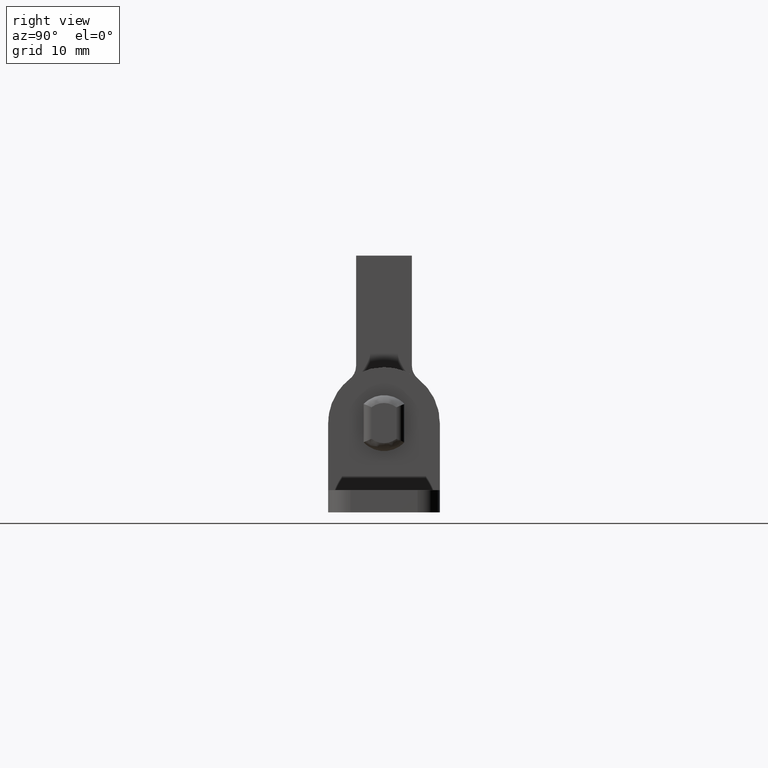
[diagram: clean part render]
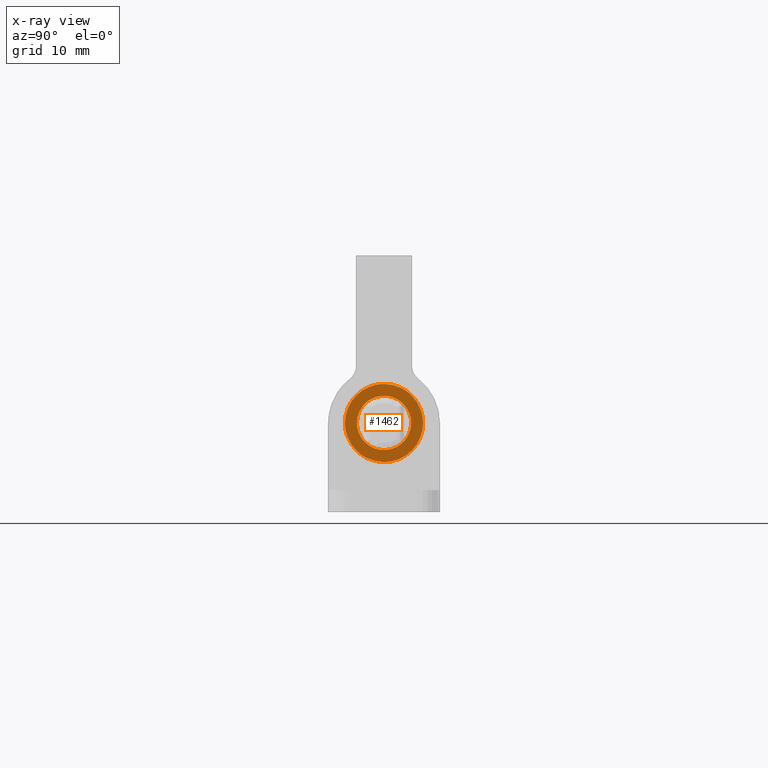
[diagram: x-ray — body ghosted, one internal face saturated and labeled with its STEP entity id]
A machine part, right view, then the same camera in x-ray: the body is ghosted and one INTERNAL B-rep face — a face not visible from any outside direction — is saturated and labeled: STEP entity #1462.
In plain terms, the highlighted face is a freeform B-spline surface patch.
Its self-contained STEP definition (entity closure, byte-faithful):
#37=CARTESIAN_POINT('',(-31.500000000000000,2.409240950135829,2.538810157072121));
#38=VERTEX_POINT('',#37);
#44=CARTESIAN_POINT('',(-31.500000000000000,3.499999999999950,-0.000000589685865));
#45=VERTEX_POINT('',#44);
#46=CARTESIAN_POINT('',(-31.500000000000000,2.409240950135829,2.538810157072121));
#47=CARTESIAN_POINT('',(-31.500000000000139,2.623933604187657,2.335185640966392));
#48=CARTESIAN_POINT('',(-31.499999999999851,2.897375926766368,2.000120248993642));
#49=CARTESIAN_POINT('',(-31.500000000000060,3.231847863744809,1.389202240311981));
#50=CARTESIAN_POINT('',(-31.500000000000050,3.443969495933714,0.769302562887201));
#51=CARTESIAN_POINT('',(-31.499999999999801,3.500037622120586,0.251505204719491));
#52=CARTESIAN_POINT('',(-31.500000000000000,3.499999999999950,-0.000000589685865));
#53=B_SPLINE_CURVE_WITH_KNOTS('',3,(#46,#47,#48,#49,#50,#51,#52),.UNSPECIFIED.,.F.,.U.,(4,1,1,1,4),(0.000000016702382,0.887669780125678,1.287128809538576,2.086023199816372,2.840542868185275),.UNSPECIFIED.);
#54=EDGE_CURVE('',#38,#45,#53,.T.);
#56=CARTESIAN_POINT('',(-31.500000000000000,0.0,-3.500000000000000));
#57=VERTEX_POINT('',#56);
#58=CARTESIAN_POINT('',(-31.500000000000000,3.499999999999950,-0.000000589685865));
#59=CARTESIAN_POINT('',(-31.500000000000050,3.500005143859668,-0.171801259262824));
#60=CARTESIAN_POINT('',(-31.500000000000000,3.470441096384983,-0.572680562555199));
#61=CARTESIAN_POINT('',(-31.499999999999979,3.316661737101244,-1.186718283153935));
#62=CARTESIAN_POINT('',(-31.499999999999979,3.002965183564402,-1.850000236501209));
#63=CARTESIAN_POINT('',(-31.499999999999989,2.589439601120672,-2.386631525019033));
#64=CARTESIAN_POINT('',(-31.500000000000359,2.073193370396063,-2.843085341939303));
#65=CARTESIAN_POINT('',(-31.499999999998970,1.581146930036365,-3.142125664006574));
#66=CARTESIAN_POINT('',(-31.500000000001481,0.873249090323637,-3.420201974097066));
#67=CARTESIAN_POINT('',(-31.499999999998671,0.357960410474342,-3.500204626563484));
#68=CARTESIAN_POINT('',(-31.500000000000000,0.0,-3.500000000000000));
#69=B_SPLINE_CURVE_WITH_KNOTS('',3,(#58,#59,#60,#61,#62,#63,#64,#65,#66,#67,#68),.UNSPECIFIED.,.F.,.U.,(4,1,1,1,1,1,1,1,4),(0.000000061539621,0.515404665074777,1.202648375425238,1.889885754813425,2.705976917351017,3.221378419680692,3.951557428571207,4.424028806546783,5.497821307706870),.UNSPECIFIED.);
#70=EDGE_CURVE('',#45,#57,#69,.T.);
#72=CARTESIAN_POINT('',(-31.500000000000000,-2.409240950135825,-2.538810157072116));
#73=VERTEX_POINT('',#72);
#74=CARTESIAN_POINT('',(-31.500000000000000,0.0,-3.500000000000000));
#75=CARTESIAN_POINT('',(-31.500000000000028,-0.235280568701778,-3.500027703123911));
#76=CARTESIAN_POINT('',(-31.499999999999950,-0.691982468023888,-3.453777104531438));
#77=CARTESIAN_POINT('',(-31.499999999999979,-1.343467856917371,-3.254716968093846));
#78=CARTESIAN_POINT('',(-31.500000000000160,-1.921094193718526,-2.949274682154409));
#79=CARTESIAN_POINT('',(-31.499999999999769,-2.258666162015066,-2.681725575710843));
#80=CARTESIAN_POINT('',(-31.500000000000000,-2.409240950135825,-2.538810157072116));
#81=B_SPLINE_CURVE_WITH_KNOTS('',3,(#74,#75,#76,#77,#78,#79,#80),.UNSPECIFIED.,.F.,.U.,(4,1,1,1,4),(0.000000015991102,0.705840394464662,1.370149730000086,2.034480066909638,2.657279360881123),.UNSPECIFIED.);
#82=EDGE_CURVE('',#57,#73,#81,.T.);
#176=CARTESIAN_POINT('',(-31.500000000000000,-3.499999999999950,0.000000589685895));
#177=VERTEX_POINT('',#176);
#178=CARTESIAN_POINT('',(-31.500000000000000,-2.409240950135825,-2.538810157072116));
#179=CARTESIAN_POINT('',(-31.499999999999979,-2.602449854333944,-2.355538903036276));
#180=CARTESIAN_POINT('',(-31.500000000000021,-2.898851023043511,-2.001654368097816));
#181=CARTESIAN_POINT('',(-31.499999999999979,-3.255333139698867,-1.350610403183977));
#182=CARTESIAN_POINT('',(-31.500000000000099,-3.456586897320094,-0.695343441613379));
#183=CARTESIAN_POINT('',(-31.499999999999989,-3.500009613183478,-0.207118314268895));
#184=CARTESIAN_POINT('',(-31.500000000000000,-3.499999999999950,0.000000589685895));
#185=B_SPLINE_CURVE_WITH_KNOTS('',3,(#178,#179,#180,#181,#182,#183,#184),.UNSPECIFIED.,.F.,.U.,(4,1,1,1,4),(0.000000016702478,0.798904300737343,1.375896833801834,2.219175726478788,2.840542868185302),.UNSPECIFIED.);
#186=EDGE_CURVE('',#73,#177,#185,.T.);
#188=CARTESIAN_POINT('',(-31.500000000000000,0.0,3.500000000000000));
#189=VERTEX_POINT('',#188);
#190=CARTESIAN_POINT('',(-31.500000000000000,-3.499999999999950,0.000000589685895));
#191=CARTESIAN_POINT('',(-31.499999999999989,-3.500228330249439,0.372279906828918));
#192=CARTESIAN_POINT('',(-31.500000000000011,-3.414666064510771,0.901874621613662));
#193=CARTESIAN_POINT('',(-31.499999999999989,-3.149503555099130,1.553110669801262));
#194=CARTESIAN_POINT('',(-31.499999999999950,-2.845955940730506,2.074095868803071));
#195=CARTESIAN_POINT('',(-31.500000000000000,-2.447696806486612,2.530047149080243));
#196=CARTESIAN_POINT('',(-31.500000000000021,-1.896042762364138,2.966063380792016));
#197=CARTESIAN_POINT('',(-31.500000000000071,-1.322116082076260,3.268325847951649));
#198=CARTESIAN_POINT('',(-31.499999999999989,-0.644262302215942,3.460343367596265));
#199=CARTESIAN_POINT('',(-31.500000000000199,-0.214756637590486,3.500022009828396));
#200=CARTESIAN_POINT('',(-31.500000000000000,0.0,3.500000000000000));
#201=B_SPLINE_CURVE_WITH_KNOTS('',3,(#190,#191,#192,#193,#194,#195,#196,#197,#198,#199,#200),.UNSPECIFIED.,.F.,.U.,(4,1,1,1,1,1,1,1,4),(0.000000061541042,1.116740479682100,1.589218187281673,2.104637390701033,2.920712347977146,3.393181288406992,4.209271102710668,4.853550703403378,5.497821307706844),.UNSPECIFIED.);
#202=EDGE_CURVE('',#177,#189,#201,.T.);
#204=CARTESIAN_POINT('',(-31.500000000000000,0.0,3.500000000000000));
#205=CARTESIAN_POINT('',(-31.499999999999989,0.359851014319225,3.500163605039672));
#206=CARTESIAN_POINT('',(-31.500000000000071,1.010242341206048,3.398800642862796));
#207=CARTESIAN_POINT('',(-31.499999999999918,1.820480302602904,3.024210719543779));
#208=CARTESIAN_POINT('',(-31.500000000000121,2.238588535343907,2.700775235164257));
#209=CARTESIAN_POINT('',(-31.500000000000000,2.409240950135829,2.538810157072121));
#210=B_SPLINE_CURVE_WITH_KNOTS('',3,(#204,#205,#206,#207,#208,#209),.UNSPECIFIED.,.F.,.U.,(4,1,1,4),(0.000000015990717,1.079523307776310,1.951438982416176,2.657279360881125),.UNSPECIFIED.);
#211=EDGE_CURVE('',#189,#38,#210,.T.);
#359=CARTESIAN_POINT('',(-31.500000000000000,-2.429847076946210,0.006137585480502));
#360=VERTEX_POINT('',#359);
#369=CARTESIAN_POINT('',(-31.500000000000000,-1.220238843417092,2.101240503206545));
#370=VERTEX_POINT('',#369);
#378=CARTESIAN_POINT('',(-31.500000000000000,-2.429847076946210,0.006137585480502));
#379=CARTESIAN_POINT('',(-31.500000000000039,-2.429440885856192,0.177593474119328));
#380=CARTESIAN_POINT('',(-31.499999999999950,-2.396404685008554,0.480845165096867));
#381=CARTESIAN_POINT('',(-31.500000000000149,-2.276875708987284,0.873256050238015));
#382=CARTESIAN_POINT('',(-31.499999999999758,-2.078996734014296,1.291407223846236));
#383=CARTESIAN_POINT('',(-31.500000000000270,-1.750439425399211,1.727388974166445));
#384=CARTESIAN_POINT('',(-31.499999999999890,-1.402754255222924,1.995318162344160));
#385=CARTESIAN_POINT('',(-31.500000000000000,-1.220238843417092,2.101240503206545));
#386=B_SPLINE_CURVE_WITH_KNOTS('',3,(#378,#379,#380,#381,#382,#383,#384,#385),.UNSPECIFIED.,.F.,.U.,(4,1,1,1,1,4),(0.000000034016249,0.514369918930109,0.910043600772598,1.226589141071333,1.899218120400070,2.532290815861330),.UNSPECIFIED.);
#387=EDGE_CURVE('',#360,#370,#386,.T.);
#531=CARTESIAN_POINT('',(-31.500000000000000,-1.220238843417076,-2.101240503206555));
#532=VERTEX_POINT('',#531);
#541=CARTESIAN_POINT('',(-31.500000000000000,-2.429847076946215,-0.006137585480422));
#542=VERTEX_POINT('',#541);
#550=CARTESIAN_POINT('',(-31.500000000000000,-1.220238843417076,-2.101240503206555));
#551=CARTESIAN_POINT('',(-31.499999999999940,-1.459857591371081,-1.962303226018174));
#552=CARTESIAN_POINT('',(-31.500000000000089,-1.839300563157373,-1.644183577323825));
#553=CARTESIAN_POINT('',(-31.499999999999961,-2.163466969451102,-1.141036406344495));
#554=CARTESIAN_POINT('',(-31.500000000000139,-2.372733156556948,-0.612619083532918));
#555=CARTESIAN_POINT('',(-31.499999999999950,-2.429337699573857,-0.256744894770185));
#556=CARTESIAN_POINT('',(-31.500000000000000,-2.429847076946215,-0.006137585480422));
#557=B_SPLINE_CURVE_WITH_KNOTS('',3,(#550,#551,#552,#553,#554,#555,#556),.UNSPECIFIED.,.F.,.U.,(4,1,1,1,4),(0.000000034016299,0.830913220748236,1.463977506022430,1.780515309852722,2.532290815861430),.UNSPECIFIED.);
#558=EDGE_CURVE('',#532,#542,#557,.T.);
#704=CARTESIAN_POINT('',(-31.500000000000000,1.209608233529210,-2.107378088686965));
#705=VERTEX_POINT('',#704);
#714=CARTESIAN_POINT('',(-31.500000000000000,-1.209608233529132,-2.107378088687010));
#715=VERTEX_POINT('',#714);
#723=CARTESIAN_POINT('',(-31.500000000000000,1.209608233529210,-2.107378088686965));
#724=CARTESIAN_POINT('',(-31.500000000000000,1.083792076834413,-2.179609090662489));
#725=CARTESIAN_POINT('',(-31.500000000000028,0.807140590192351,-2.306966935432281));
#726=CARTESIAN_POINT('',(-31.499999999999961,0.279944326194335,-2.438473846015306));
#727=CARTESIAN_POINT('',(-31.500000000000082,-0.279944126652510,-2.438460362380531));
#728=CARTESIAN_POINT('',(-31.499999999999979,-0.807140725298222,-2.306970161958904));
#729=CARTESIAN_POINT('',(-31.500000000000000,-1.083791994667418,-2.179609504651535));
#730=CARTESIAN_POINT('',(-31.500000000000000,-1.209608233529132,-2.107378088687010));
#731=B_SPLINE_CURVE_WITH_KNOTS('',3,(#723,#724,#725,#726,#727,#728,#729,#730),.UNSPECIFIED.,.F.,.U.,(4,1,1,1,1,4),(0.000000034016121,0.435232238206791,0.910043600772567,1.622247249105048,2.097058611670821,2.532290815861482),.UNSPECIFIED.);
#732=EDGE_CURVE('',#705,#715,#731,.T.);
#877=CARTESIAN_POINT('',(-31.500000000000000,2.429847076946215,-0.006137585480332));
#878=VERTEX_POINT('',#877);
#887=CARTESIAN_POINT('',(-31.500000000000000,1.220238843417154,-2.101240503206510));
#888=VERTEX_POINT('',#887);
#896=CARTESIAN_POINT('',(-31.500000000000000,2.429847076946215,-0.006137585480332));
#897=CARTESIAN_POINT('',(-31.500000000000011,2.429441228493824,-0.177593673154386));
#898=CARTESIAN_POINT('',(-31.500000000000011,2.396397671879707,-0.480841915249254));
#899=CARTESIAN_POINT('',(-31.500000000000000,2.246089517338075,-0.974545088203025));
#900=CARTESIAN_POINT('',(-31.500000000000011,1.987626328429991,-1.439593994729914));
#901=CARTESIAN_POINT('',(-31.499999999999989,1.615962603760144,-1.837205535934563));
#902=CARTESIAN_POINT('',(-31.500000000000028,1.345699054134447,-2.028393855585825));
#903=CARTESIAN_POINT('',(-31.500000000000000,1.220238843417154,-2.101240503206510));
#904=B_SPLINE_CURVE_WITH_KNOTS('',3,(#896,#897,#898,#899,#900,#901,#902,#903),.UNSPECIFIED.,.F.,.U.,(4,1,1,1,1,4),(0.000000034016117,0.514369918930014,0.910043600772534,1.543104992277692,2.097058611670778,2.532290815861433),.UNSPECIFIED.);
#905=EDGE_CURVE('',#878,#888,#904,.T.);
#915=CARTESIAN_POINT('',(-31.500000000000000,1.209608233529046,2.107378088687060));
#916=VERTEX_POINT('',#915);
#947=CARTESIAN_POINT('',(-31.500000000000000,1.249999999999942,2.165063509461220));
#948=VERTEX_POINT('',#947);
#954=CARTESIAN_POINT('',(-31.500000000000000,1.249999999999942,2.165063509461220));
#955=CARTESIAN_POINT('',(-31.500000000000000,1.209608233529046,2.107378088687060));
#956=QUASI_UNIFORM_CURVE('',1,(#954,#955),.UNSPECIFIED.,.F.,.U.);
#957=EDGE_CURVE('',#948,#916,#956,.T.);
#969=CARTESIAN_POINT('',(-31.500000000000000,1.220238843417016,2.101240503206590));
#970=VERTEX_POINT('',#969);
#978=CARTESIAN_POINT('',(-31.500000000000000,1.220238843417016,2.101240503206590));
#979=CARTESIAN_POINT('',(-31.500000000000000,1.249999999999942,2.165063509461220));
#980=QUASI_UNIFORM_CURVE('',1,(#978,#979),.UNSPECIFIED.,.F.,.U.);
#981=EDGE_CURVE('',#970,#948,#980,.T.);
#1011=CARTESIAN_POINT('',(-31.500000000000000,2.429847076946210,0.006137585480591));
#1012=VERTEX_POINT('',#1011);
#1041=CARTESIAN_POINT('',(-31.500000000000000,2.500000000000035,1.045830E-013));
#1042=VERTEX_POINT('',#1041);
#1048=CARTESIAN_POINT('',(-31.500000000000000,2.500000000000035,1.045830E-013));
#1049=CARTESIAN_POINT('',(-31.500000000000000,2.429847076946210,0.006137585480591));
#1050=QUASI_UNIFORM_CURVE('',1,(#1048,#1049),.UNSPECIFIED.,.F.,.U.);
#1051=EDGE_CURVE('',#1042,#1012,#1050,.T.);
#1062=CARTESIAN_POINT('',(-31.500000000000000,2.429847076946215,-0.006137585480332));
#1063=CARTESIAN_POINT('',(-31.500000000000000,2.500000000000035,1.045830E-013));
#1064=QUASI_UNIFORM_CURVE('',1,(#1062,#1063),.UNSPECIFIED.,.F.,.U.);
#1065=EDGE_CURVE('',#878,#1042,#1064,.T.);
#1083=CARTESIAN_POINT('',(-31.500000000000000,1.250000000000032,-2.165063509461030));
#1084=VERTEX_POINT('',#1083);
#1090=CARTESIAN_POINT('',(-31.500000000000000,1.250000000000032,-2.165063509461030));
#1091=CARTESIAN_POINT('',(-31.500000000000000,1.220238843417154,-2.101240503206510));
#1092=QUASI_UNIFORM_CURVE('',1,(#1090,#1091),.UNSPECIFIED.,.F.,.U.);
#1093=EDGE_CURVE('',#1084,#888,#1092,.T.);
#1104=CARTESIAN_POINT('',(-31.500000000000000,1.209608233529210,-2.107378088686965));
#1105=CARTESIAN_POINT('',(-31.500000000000000,1.250000000000032,-2.165063509461030));
#1106=QUASI_UNIFORM_CURVE('',1,(#1104,#1105),.UNSPECIFIED.,.F.,.U.);
#1107=EDGE_CURVE('',#705,#1084,#1106,.T.);
#1125=CARTESIAN_POINT('',(-31.500000000000000,-1.250000000000000,-2.165063509461050));
#1126=VERTEX_POINT('',#1125);
#1132=CARTESIAN_POINT('',(-31.500000000000000,-1.250000000000000,-2.165063509461050));
#1133=CARTESIAN_POINT('',(-31.500000000000000,-1.209608233529132,-2.107378088687010));
#1134=QUASI_UNIFORM_CURVE('',1,(#1132,#1133),.UNSPECIFIED.,.F.,.U.);
#1135=EDGE_CURVE('',#1126,#715,#1134,.T.);
#1146=CARTESIAN_POINT('',(-31.500000000000000,-1.220238843417076,-2.101240503206555));
#1147=CARTESIAN_POINT('',(-31.500000000000000,-1.250000000000000,-2.165063509461050));
#1148=QUASI_UNIFORM_CURVE('',1,(#1146,#1147),.UNSPECIFIED.,.F.,.U.);
#1149=EDGE_CURVE('',#532,#1126,#1148,.T.);
#1167=CARTESIAN_POINT('',(-31.500000000000000,-2.500000000000035,6.528111E-014));
#1168=VERTEX_POINT('',#1167);
#1174=CARTESIAN_POINT('',(-31.500000000000000,-2.500000000000035,6.528111E-014));
#1175=CARTESIAN_POINT('',(-31.500000000000000,-2.429847076946215,-0.006137585480422));
#1176=QUASI_UNIFORM_CURVE('',1,(#1174,#1175),.UNSPECIFIED.,.F.,.U.);
#1177=EDGE_CURVE('',#1168,#542,#1176,.T.);
#1188=CARTESIAN_POINT('',(-31.500000000000000,-2.429847076946210,0.006137585480502));
#1189=CARTESIAN_POINT('',(-31.500000000000000,-2.500000000000035,6.528111E-014));
#1190=QUASI_UNIFORM_CURVE('',1,(#1188,#1189),.UNSPECIFIED.,.F.,.U.);
#1191=EDGE_CURVE('',#360,#1168,#1190,.T.);
#1209=CARTESIAN_POINT('',(-31.500000000000000,-1.250000000000034,2.165063509461200));
#1210=VERTEX_POINT('',#1209);
#1216=CARTESIAN_POINT('',(-31.500000000000000,-1.250000000000034,2.165063509461200));
#1217=CARTESIAN_POINT('',(-31.500000000000000,-1.220238843417092,2.101240503206545));
#1218=QUASI_UNIFORM_CURVE('',1,(#1216,#1217),.UNSPECIFIED.,.F.,.U.);
#1219=EDGE_CURVE('',#1210,#370,#1218,.T.);
#1231=CARTESIAN_POINT('',(-31.500000000000000,-1.209608233529124,2.107378088687015));
#1232=VERTEX_POINT('',#1231);
#1240=CARTESIAN_POINT('',(-31.500000000000000,-1.209608233529124,2.107378088687015));
#1241=CARTESIAN_POINT('',(-31.500000000000000,-1.250000000000034,2.165063509461200));
#1242=QUASI_UNIFORM_CURVE('',1,(#1240,#1241),.UNSPECIFIED.,.F.,.U.);
#1243=EDGE_CURVE('',#1232,#1210,#1242,.T.);
#1403=CARTESIAN_POINT('',(-31.500000000000000,-1.209608233529124,2.107378088687015));
#1404=CARTESIAN_POINT('',(-31.499999999999979,-1.003758114760864,2.225657340725527));
#1405=CARTESIAN_POINT('',(-31.500000000000099,-0.619083867598770,2.376669815589493));
#1406=CARTESIAN_POINT('',(-31.499999999999829,-0.079351658618328,2.442887832033582));
#1407=CARTESIAN_POINT('',(-31.500000000000291,0.382814402192293,2.412742984322216));
#1408=CARTESIAN_POINT('',(-31.499999999999890,0.807141256235742,2.306981108837205));
#1409=CARTESIAN_POINT('',(-31.500000000000249,1.083791816019454,2.179609526642749));
#1410=CARTESIAN_POINT('',(-31.500000000000000,1.209608233529046,2.107378088687060));
#1411=B_SPLINE_CURVE_WITH_KNOTS('',3,(#1403,#1404,#1405,#1406,#1407,#1408,#1409,#1410),.UNSPECIFIED.,.F.,.U.,(4,1,1,1,1,4),(0.000000034015952,0.712207359226843,1.226589141071145,1.622247249104863,2.097058611670629,2.532290815861288),.UNSPECIFIED.);
#1412=EDGE_CURVE('',#1232,#916,#1411,.T.);
#1419=CARTESIAN_POINT('',(-31.500000000000000,-3.849649986432587,3.849649986432642));
#1420=CARTESIAN_POINT('',(-31.500000000000000,-3.849649986432587,-3.849650174187273));
#1421=CARTESIAN_POINT('',(-31.500000000000000,3.849650174187218,3.849649986432642));
#1422=CARTESIAN_POINT('',(-31.500000000000000,3.849650174187218,-3.849650174187273));
#1423=B_SPLINE_SURFACE_WITH_KNOTS('',1,1,((#1419,#1421),(#1420,#1422)),.UNSPECIFIED.,.F.,.F.,.U.,(2,2),(2,2),(0.0,7.699300160619915),(0.0,7.699300160619805),.UNSPECIFIED.);
#1424=ORIENTED_EDGE('',*,*,#202,.F.);
#1425=ORIENTED_EDGE('',*,*,#186,.F.);
#1426=ORIENTED_EDGE('',*,*,#82,.F.);
#1427=ORIENTED_EDGE('',*,*,#70,.F.);
#1428=ORIENTED_EDGE('',*,*,#54,.F.);
#1429=ORIENTED_EDGE('',*,*,#211,.F.);
#1430=EDGE_LOOP('',(#1424,#1425,#1426,#1427,#1428,#1429));
#1431=FACE_OUTER_BOUND('',#1430,.T.);
#1432=CARTESIAN_POINT('',(-31.500000000000000,1.220238843417016,2.101240503206590));
#1433=CARTESIAN_POINT('',(-31.500000000000060,1.402755810336135,1.995319853216335));
#1434=CARTESIAN_POINT('',(-31.499999999999869,1.708280246724675,1.759843154660957));
#1435=CARTESIAN_POINT('',(-31.500000000000160,2.016171702716924,1.377730919722511));
#1436=CARTESIAN_POINT('',(-31.499999999999741,2.221641032429281,1.008050384419120));
#1437=CARTESIAN_POINT('',(-31.500000000000021,2.381731098547216,0.573114850753149));
#1438=CARTESIAN_POINT('',(-31.499999999999751,2.429370301198882,0.217164342509960));
#1439=CARTESIAN_POINT('',(-31.500000000000000,2.429847076946210,0.006137585480591));
#1440=B_SPLINE_CURVE_WITH_KNOTS('',3,(#1432,#1433,#1434,#1435,#1436,#1437,#1438,#1439),.UNSPECIFIED.,.F.,.U.,(4,1,1,1,1,4),(0.000000034016290,0.633072729477576,1.147457044103420,1.463977506022402,1.899218120400080,2.532290815861330),.UNSPECIFIED.);
#1441=EDGE_CURVE('',#970,#1012,#1440,.T.);
#1442=ORIENTED_EDGE('',*,*,#1441,.T.);
#1443=ORIENTED_EDGE('',*,*,#1051,.F.);
#1444=ORIENTED_EDGE('',*,*,#1065,.F.);
#1445=ORIENTED_EDGE('',*,*,#905,.T.);
#1446=ORIENTED_EDGE('',*,*,#1093,.F.);
#1447=ORIENTED_EDGE('',*,*,#1107,.F.);
#1448=ORIENTED_EDGE('',*,*,#732,.T.);
#1449=ORIENTED_EDGE('',*,*,#1135,.F.);
#1450=ORIENTED_EDGE('',*,*,#1149,.F.);
#1451=ORIENTED_EDGE('',*,*,#558,.T.);
#1452=ORIENTED_EDGE('',*,*,#1177,.F.);
#1453=ORIENTED_EDGE('',*,*,#1191,.F.);
#1454=ORIENTED_EDGE('',*,*,#387,.T.);
#1455=ORIENTED_EDGE('',*,*,#1219,.F.);
#1456=ORIENTED_EDGE('',*,*,#1243,.F.);
#1457=ORIENTED_EDGE('',*,*,#1412,.T.);
#1458=ORIENTED_EDGE('',*,*,#957,.F.);
#1459=ORIENTED_EDGE('',*,*,#981,.F.);
#1460=EDGE_LOOP('',(#1442,#1443,#1444,#1445,#1446,#1447,#1448,#1449,#1450,#1451,#1452,#1453,#1454,#1455,#1456,#1457,#1458,#1459));
#1461=FACE_BOUND('',#1460,.T.);
#1462=ADVANCED_FACE('',(#1431,#1461),#1423,.T.);